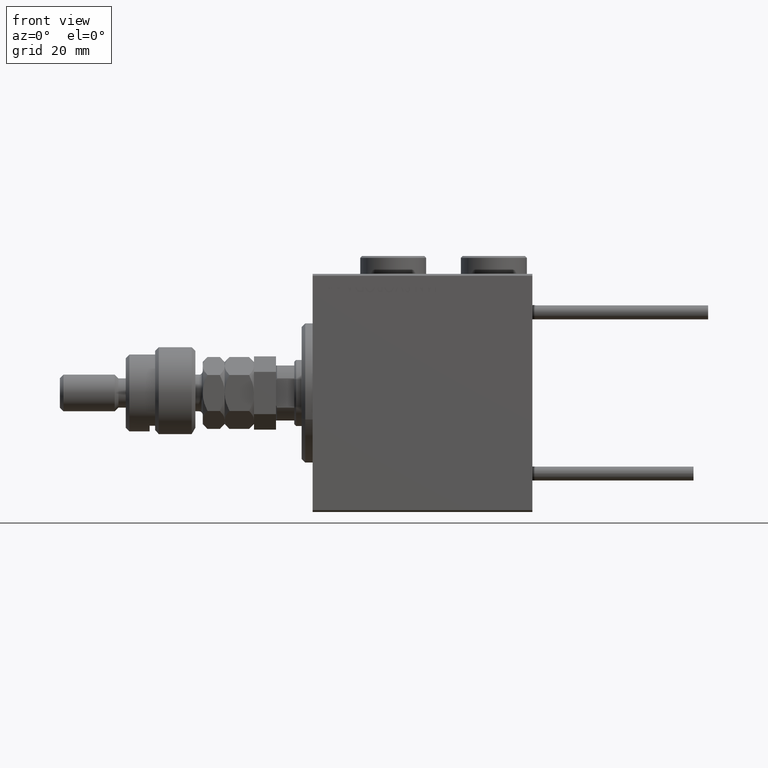
[diagram: clean part render]
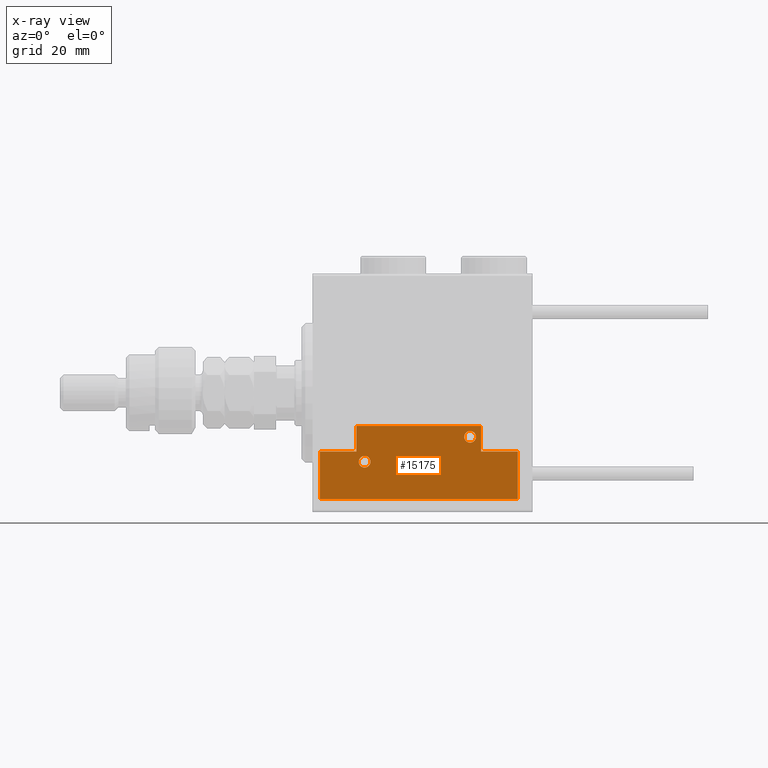
[diagram: x-ray — body ghosted, one internal face saturated and labeled with its STEP entity id]
A machine part, front view, then the same camera in x-ray: the body is ghosted and one INTERNAL B-rep face — a face not visible from any outside direction — is saturated and labeled: STEP entity #15175.
In plain terms, the highlighted planar face has unit normal (-0, 1, -0).
Its self-contained STEP definition (entity closure, byte-faithful):
#1657 = CARTESIAN_POINT ( 'NONE',  ( 16.99999999999999289, 3.252606517456513302E-15, 0.000000000000000000 ) ) ;
#2350 = CARTESIAN_POINT ( 'NONE',  ( -13.19999999999994778, 9.800000000000004263, 0.000000000000000000 ) ) ;
#2590 = DIRECTION ( 'NONE',  ( 1.000000000000000000, 0.000000000000000000, 0.000000000000000000 ) ) ;
#2906 = CARTESIAN_POINT ( 'NONE',  ( -16.39999999999994884, 9.800000000000004263, 0.000000000000000000 ) ) ;
#3023 = EDGE_CURVE ( 'NONE', #16167, #31279, #26047, .T. ) ;
#3287 = VERTEX_POINT ( 'NONE', #2906 ) ;
#3415 = FACE_BOUND ( 'NONE', #32348, .T. ) ;
#4831 = CARTESIAN_POINT ( 'NONE',  ( -16.99999999999999289, 7.000000000000003553, 0.000000000000000000 ) ) ;
#5322 = CARTESIAN_POINT ( 'NONE',  ( -16.99999999999999289, 7.000000000000003553, 0.000000000000000000 ) ) ;
#6003 = VERTEX_POINT ( 'NONE', #50679 ) ;
#6606 = LINE ( 'NONE', #18959, #17274 ) ;
#6726 = CARTESIAN_POINT ( 'NONE',  ( 0.000000000000000000, 0.000000000000000000, 0.000000000000000000 ) ) ;
#6753 = CIRCLE ( 'NONE', #37456, 1.600000000000000755 ) ;
#7036 = DIRECTION ( 'NONE',  ( 0.000000000000000000, 0.000000000000000000, 1.000000000000000000 ) ) ;
#7507 = EDGE_CURVE ( 'NONE', #29090, #16167, #45094, .T. ) ;
#8333 = VERTEX_POINT ( 'NONE', #35201 ) ;
#8836 = ORIENTED_EDGE ( 'NONE', *, *, #54229, .T. ) ;
#9481 = ORIENTED_EDGE ( 'NONE', *, *, #23388, .T. ) ;
#9973 = ORIENTED_EDGE ( 'NONE', *, *, #28304, .F. ) ;
#10276 = VERTEX_POINT ( 'NONE', #4831 ) ;
#10415 = LINE ( 'NONE', #31585, #40133 ) ;
#11015 = CARTESIAN_POINT ( 'NONE',  ( 27.00000000000006395, 20.00000000000001776, 0.000000000000000000 ) ) ;
#11829 = CIRCLE ( 'NONE', #42547, 1.600000000000000755 ) ;
#11912 = ORIENTED_EDGE ( 'NONE', *, *, #27207, .T. ) ;
#12313 = ORIENTED_EDGE ( 'NONE', *, *, #40968, .F. ) ;
#12367 = CARTESIAN_POINT ( 'NONE',  ( 13.99999999999999822, 3.000000000000002665, 0.000000000000000000 ) ) ;
#15175 = ADVANCED_FACE ( 'NONE', ( #3415, #49607, #32546 ), #48519, .F. ) ;
#15289 = VERTEX_POINT ( 'NONE', #24850 ) ;
#15380 = DIRECTION ( 'NONE',  ( 1.000000000000000000, -1.734723475976815230E-16, 0.000000000000000000 ) ) ;
#16167 = VERTEX_POINT ( 'NONE', #11015 ) ;
#16784 = ORIENTED_EDGE ( 'NONE', *, *, #7507, .F. ) ;
#17274 = VECTOR ( 'NONE', #15380, 1000.000000000000000 ) ;
#18959 = CARTESIAN_POINT ( 'NONE',  ( -26.99999999999994671, 7.000000000000005329, 0.000000000000000000 ) ) ;
#19873 = CARTESIAN_POINT ( 'NONE',  ( 13.99999999999999822, 3.000000000000002665, 0.000000000000000000 ) ) ;
#21106 = DIRECTION ( 'NONE',  ( -1.000000000000000000, 6.424901762877062263E-17, 0.000000000000000000 ) ) ;
#21898 = VECTOR ( 'NONE', #35167, 1000.000000000000000 ) ;
#22813 = LINE ( 'NONE', #1657, #21898 ) ;
#22891 = DIRECTION ( 'NONE',  ( 0.000000000000000000, -1.000000000000000000, 0.000000000000000000 ) ) ;
#23059 = EDGE_LOOP ( 'NONE', ( #41576, #42578, #29360, #12313, #9973, #32208, #38476, #16784 ) ) ;
#23301 = LINE ( 'NONE', #35917, #42313 ) ;
#23388 = EDGE_CURVE ( 'NONE', #3287, #52830, #51009, .T. ) ;
#23541 = CARTESIAN_POINT ( 'NONE',  ( -26.99999999999993605, 20.00000000000002132, 0.000000000000000000 ) ) ;
#23799 = CARTESIAN_POINT ( 'NONE',  ( -14.79999999999994920, 9.800000000000004263, 0.000000000000000000 ) ) ;
#24002 = DIRECTION ( 'NONE',  ( 0.000000000000000000, 0.000000000000000000, 1.000000000000000000 ) ) ;
#24850 = CARTESIAN_POINT ( 'NONE',  ( -26.99999999999994671, 7.000000000000005329, 0.000000000000000000 ) ) ;
#25014 = AXIS2_PLACEMENT_3D ( 'NONE', #19873, #24002, #27845 ) ;
#25154 = DIRECTION ( 'NONE',  ( 1.000000000000000000, -1.734723475976796001E-16, 0.000000000000000000 ) ) ;
#26047 = LINE ( 'NONE', #29893, #35525 ) ;
#27016 = LINE ( 'NONE', #5322, #41303 ) ;
#27207 = EDGE_CURVE ( 'NONE', #50512, #43739, #50487, .T. ) ;
#27845 = DIRECTION ( 'NONE',  ( 1.000000000000000000, 0.000000000000000000, 0.000000000000000000 ) ) ;
#28304 = EDGE_CURVE ( 'NONE', #15289, #10276, #6606, .T. ) ;
#29090 = VERTEX_POINT ( 'NONE', #52576 ) ;
#29360 = ORIENTED_EDGE ( 'NONE', *, *, #44819, .F. ) ;
#29893 = CARTESIAN_POINT ( 'NONE',  ( 27.00000000000006395, 20.00000000000001776, 0.000000000000000000 ) ) ;
#30221 = DIRECTION ( 'NONE',  ( 0.000000000000000000, 0.000000000000000000, 1.000000000000000000 ) ) ;
#30287 = EDGE_CURVE ( 'NONE', #43739, #50512, #6753, .T. ) ;
#30998 = EDGE_CURVE ( 'NONE', #31279, #15289, #10415, .T. ) ;
#31279 = VERTEX_POINT ( 'NONE', #23541 ) ;
#31585 = CARTESIAN_POINT ( 'NONE',  ( -26.99999999999993605, 20.00000000000002132, 0.000000000000000000 ) ) ;
#32208 = ORIENTED_EDGE ( 'NONE', *, *, #30998, .F. ) ;
#32348 = EDGE_LOOP ( 'NONE', ( #8836, #9481 ) ) ;
#32546 = FACE_OUTER_BOUND ( 'NONE', #23059, .T. ) ;
#33257 = AXIS2_PLACEMENT_3D ( 'NONE', #6726, #40246, #2590 ) ;
#33383 = CARTESIAN_POINT ( 'NONE',  ( 17.00000000000000000, 7.000000000000009770, 0.000000000000000000 ) ) ;
#33494 = AXIS2_PLACEMENT_3D ( 'NONE', #41577, #41848, #37180 ) ;
#35047 = EDGE_CURVE ( 'NONE', #6003, #8333, #22813, .T. ) ;
#35167 = DIRECTION ( 'NONE',  ( 9.912705577010318647E-16, 1.000000000000000000, 0.000000000000000000 ) ) ;
#35201 = CARTESIAN_POINT ( 'NONE',  ( 17.00000000000000000, 7.000000000000009770, 0.000000000000000000 ) ) ;
#35525 = VECTOR ( 'NONE', #21106, 1000.000000000000000 ) ;
#35917 = CARTESIAN_POINT ( 'NONE',  ( -16.99999999999999289, 3.252606517456513302E-15, 0.000000000000000000 ) ) ;
#36661 = CARTESIAN_POINT ( 'NONE',  ( 15.59999999999999964, 3.000000000000002665, 0.000000000000000000 ) ) ;
#37180 = DIRECTION ( 'NONE',  ( 1.000000000000000000, 0.000000000000000000, 0.000000000000000000 ) ) ;
#37456 = AXIS2_PLACEMENT_3D ( 'NONE', #12367, #30221, #47014 ) ;
#37497 = LINE ( 'NONE', #33383, #51310 ) ;
#38476 = ORIENTED_EDGE ( 'NONE', *, *, #3023, .F. ) ;
#39905 = CARTESIAN_POINT ( 'NONE',  ( -16.99999999999999289, 3.252606517456513302E-15, 0.000000000000000000 ) ) ;
#40133 = VECTOR ( 'NONE', #52476, 1000.000000000000000 ) ;
#40246 = DIRECTION ( 'NONE',  ( -0.000000000000000000, 0.000000000000000000, 1.000000000000000000 ) ) ;
#40404 = ORIENTED_EDGE ( 'NONE', *, *, #30287, .T. ) ;
#40554 = DIRECTION ( 'NONE',  ( 1.000000000000000000, 0.000000000000000000, 0.000000000000000000 ) ) ;
#40963 = DIRECTION ( 'NONE',  ( 0.000000000000000000, 1.000000000000000000, 0.000000000000000000 ) ) ;
#40968 = EDGE_CURVE ( 'NONE', #10276, #42987, #27016, .T. ) ;
#41303 = VECTOR ( 'NONE', #22891, 1000.000000000000000 ) ;
#41495 = CARTESIAN_POINT ( 'NONE',  ( 27.00000000000006395, 7.000000000000007994, 0.000000000000000000 ) ) ;
#41576 = ORIENTED_EDGE ( 'NONE', *, *, #53113, .F. ) ;
#41577 = CARTESIAN_POINT ( 'NONE',  ( -14.79999999999994920, 9.800000000000004263, 0.000000000000000000 ) ) ;
#41848 = DIRECTION ( 'NONE',  ( 0.000000000000000000, 0.000000000000000000, 1.000000000000000000 ) ) ;
#42313 = VECTOR ( 'NONE', #52710, 1000.000000000000000 ) ;
#42547 = AXIS2_PLACEMENT_3D ( 'NONE', #23799, #7036, #40554 ) ;
#42578 = ORIENTED_EDGE ( 'NONE', *, *, #35047, .F. ) ;
#42987 = VERTEX_POINT ( 'NONE', #39905 ) ;
#43739 = VERTEX_POINT ( 'NONE', #36661 ) ;
#44819 = EDGE_CURVE ( 'NONE', #42987, #6003, #23301, .T. ) ;
#45094 = LINE ( 'NONE', #41495, #47922 ) ;
#47014 = DIRECTION ( 'NONE',  ( 1.000000000000000000, 0.000000000000000000, 0.000000000000000000 ) ) ;
#47679 = CARTESIAN_POINT ( 'NONE',  ( 12.39999999999999858, 3.000000000000002665, 0.000000000000000000 ) ) ;
#47922 = VECTOR ( 'NONE', #40963, 1000.000000000000000 ) ;
#48519 = PLANE ( 'NONE',  #33257 ) ;
#49218 = EDGE_LOOP ( 'NONE', ( #40404, #11912 ) ) ;
#49607 = FACE_BOUND ( 'NONE', #49218, .T. ) ;
#50487 = CIRCLE ( 'NONE', #25014, 1.600000000000000755 ) ;
#50512 = VERTEX_POINT ( 'NONE', #47679 ) ;
#50679 = CARTESIAN_POINT ( 'NONE',  ( 16.99999999999999289, 3.252606517456513302E-15, 0.000000000000000000 ) ) ;
#51009 = CIRCLE ( 'NONE', #33494, 1.600000000000000755 ) ;
#51310 = VECTOR ( 'NONE', #25154, 1000.000000000000000 ) ;
#52476 = DIRECTION ( 'NONE',  ( -8.006416042969869188E-16, -1.000000000000000000, 0.000000000000000000 ) ) ;
#52576 = CARTESIAN_POINT ( 'NONE',  ( 27.00000000000006395, 7.000000000000007994, 0.000000000000000000 ) ) ;
#52710 = DIRECTION ( 'NONE',  ( 1.000000000000000000, 0.000000000000000000, 0.000000000000000000 ) ) ;
#52830 = VERTEX_POINT ( 'NONE', #2350 ) ;
#53113 = EDGE_CURVE ( 'NONE', #8333, #29090, #37497, .T. ) ;
#54229 = EDGE_CURVE ( 'NONE', #52830, #3287, #11829, .T. ) ;